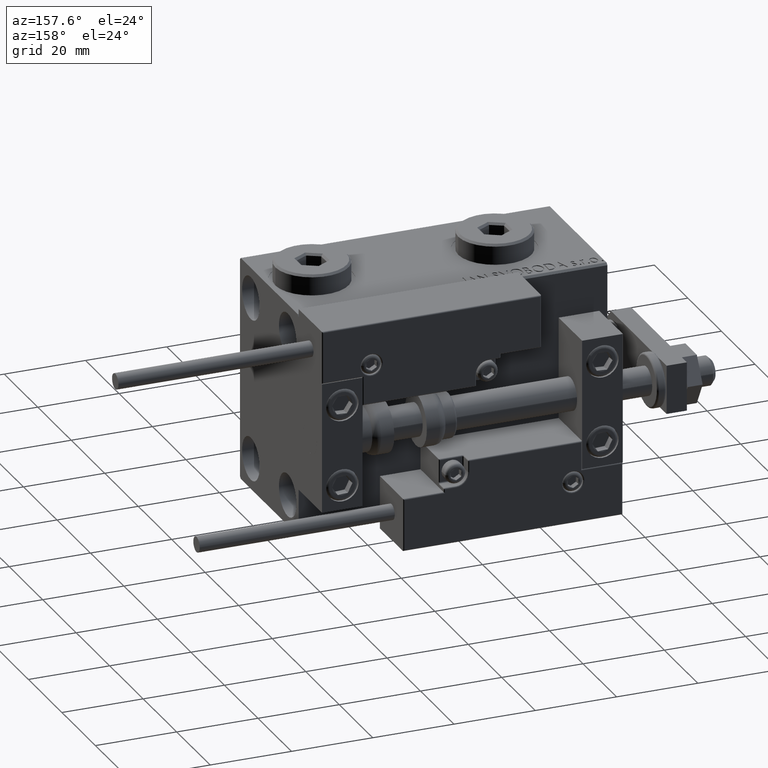
[diagram: clean part render]
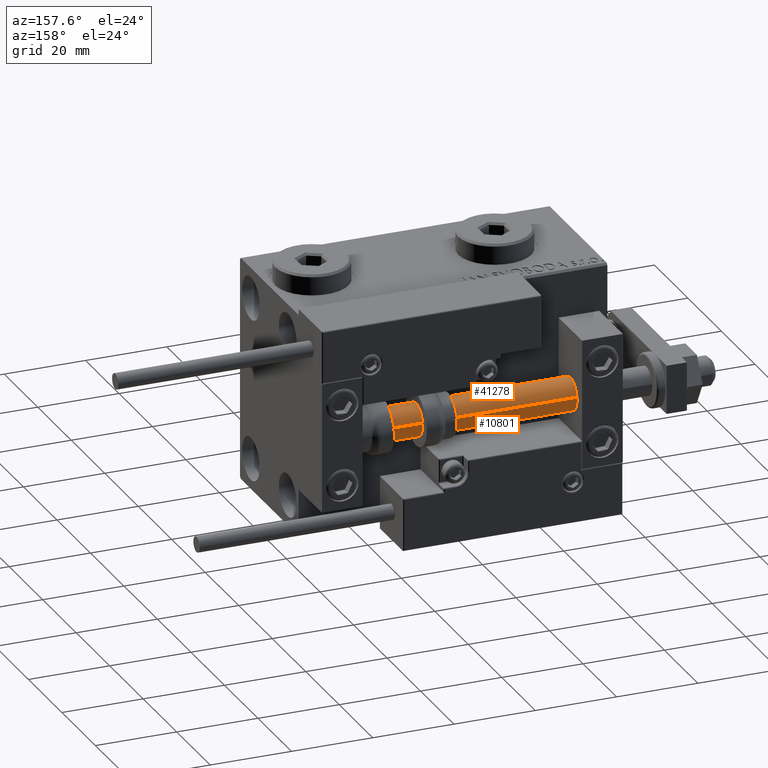
[diagram: same view with one multi-face feature highlighted, each face labeled with its STEP entity id]
A machine part, auxiliary view. The highlighted faces form ONE feature: a constant-radius fillet chain: 2 tangent blend faces with common blend radius 4 mm. The faces share edges in the B-rep.
Their STEP definitions:
[1] entity #10801 (Cylinder):
#3472 = VERTEX_POINT ( 'NONE', #39505 ) ;
#4714 = ORIENTED_EDGE ( 'NONE', *, *, #5388, .T. ) ;
#5067 = VECTOR ( 'NONE', #22461, 1000.000000000000000 ) ;
#5388 = EDGE_CURVE ( 'NONE', #16193, #13296, #23088, .T. ) ;
#7029 = DIRECTION ( 'NONE',  ( 1.000000000000000000, 0.000000000000000000, 0.000000000000000000 ) ) ;
#7575 = CYLINDRICAL_SURFACE ( 'NONE', #19918, 4.000000000000000000 ) ;
#8428 = EDGE_CURVE ( 'NONE', #14764, #3472, #35672, .T. ) ;
#10127 = CARTESIAN_POINT ( 'NONE',  ( 4.000000000000000000, 4.898587196589412829E-16, 2.000000000000029310 ) ) ;
#10801 = ADVANCED_FACE ( 'NONE', ( #35753 ), #7575, .T. ) ;
#11267 = DIRECTION ( 'NONE',  ( -0.000000000000000000, -0.000000000000000000, -1.000000000000000000 ) ) ;
#12687 = ORIENTED_EDGE ( 'NONE', *, *, #29607, .F. ) ;
#13296 = VERTEX_POINT ( 'NONE', #10127 ) ;
#14764 = VERTEX_POINT ( 'NONE', #29100 ) ;
#15994 = ORIENTED_EDGE ( 'NONE', *, *, #8428, .F. ) ;
#16193 = VERTEX_POINT ( 'NONE', #25836 ) ;
#18174 = AXIS2_PLACEMENT_3D ( 'NONE', #38868, #27880, #7029 ) ;
#18603 = CARTESIAN_POINT ( 'NONE',  ( 4.000000000000000000, 4.898587196589412829E-16, 76.00000000000000000 ) ) ;
#19208 = CARTESIAN_POINT ( 'NONE',  ( 0.000000000000000000, 0.000000000000000000, 2.000000000000029310 ) ) ;
#19918 = AXIS2_PLACEMENT_3D ( 'NONE', #27918, #43822, #20097 ) ;
#20097 = DIRECTION ( 'NONE',  ( -1.000000000000000000, 0.000000000000000000, 0.000000000000000000 ) ) ;
#22461 = DIRECTION ( 'NONE',  ( -0.000000000000000000, -0.000000000000000000, -1.000000000000000000 ) ) ;
#22621 = DIRECTION ( 'NONE',  ( 1.000000000000000000, 0.000000000000000000, 0.000000000000000000 ) ) ;
#23088 = CIRCLE ( 'NONE', #28907, 4.000000000000000000 ) ;
#25836 = CARTESIAN_POINT ( 'NONE',  ( -4.000000000000000000, 0.000000000000000000, 2.000000000000029310 ) ) ;
#27696 = EDGE_CURVE ( 'NONE', #14764, #16193, #50102, .T. ) ;
#27880 = DIRECTION ( 'NONE',  ( 0.000000000000000000, 0.000000000000000000, 1.000000000000000000 ) ) ;
#27918 = CARTESIAN_POINT ( 'NONE',  ( 0.000000000000000000, 0.000000000000000000, 76.00000000000000000 ) ) ;
#28907 = AXIS2_PLACEMENT_3D ( 'NONE', #19208, #34103, #22621 ) ;
#29100 = CARTESIAN_POINT ( 'NONE',  ( -4.000000000000000000, 0.000000000000000000, 76.00000000000000000 ) ) ;
#29513 = CARTESIAN_POINT ( 'NONE',  ( -4.000000000000000000, 0.000000000000000000, 76.00000000000000000 ) ) ;
#29607 = EDGE_CURVE ( 'NONE', #3472, #13296, #34273, .T. ) ;
#34103 = DIRECTION ( 'NONE',  ( -0.000000000000000000, -0.000000000000000000, 1.000000000000000000 ) ) ;
#34273 = LINE ( 'NONE', #18603, #34297 ) ;
#34297 = VECTOR ( 'NONE', #11267, 1000.000000000000000 ) ;
#35672 = CIRCLE ( 'NONE', #18174, 4.000000000000000000 ) ;
#35753 = FACE_OUTER_BOUND ( 'NONE', #35891, .T. ) ;
#35891 = EDGE_LOOP ( 'NONE', ( #12687, #15994, #46524, #4714 ) ) ;
#38868 = CARTESIAN_POINT ( 'NONE',  ( 0.000000000000000000, 0.000000000000000000, 76.00000000000000000 ) ) ;
#39505 = CARTESIAN_POINT ( 'NONE',  ( 4.000000000000000000, 4.898587196589412829E-16, 76.00000000000000000 ) ) ;
#43822 = DIRECTION ( 'NONE',  ( -0.000000000000000000, -0.000000000000000000, -1.000000000000000000 ) ) ;
#46524 = ORIENTED_EDGE ( 'NONE', *, *, #27696, .T. ) ;
#50102 = LINE ( 'NONE', #29513, #5067 ) ;
[2] entity #41278 (Cylinder):
#223 = CARTESIAN_POINT ( 'NONE',  ( 0.000000000000000000, 0.000000000000000000, 76.00000000000000000 ) ) ;
#742 = DIRECTION ( 'NONE',  ( 1.000000000000000000, 0.000000000000000000, 0.000000000000000000 ) ) ;
#3472 = VERTEX_POINT ( 'NONE', #39505 ) ;
#5067 = VECTOR ( 'NONE', #22461, 1000.000000000000000 ) ;
#5253 = ORIENTED_EDGE ( 'NONE', *, *, #21932, .F. ) ;
#5425 = AXIS2_PLACEMENT_3D ( 'NONE', #37491, #26239, #10582 ) ;
#10127 = CARTESIAN_POINT ( 'NONE',  ( 4.000000000000000000, 4.898587196589412829E-16, 2.000000000000029310 ) ) ;
#10582 = DIRECTION ( 'NONE',  ( 1.000000000000000000, 0.000000000000000000, 0.000000000000000000 ) ) ;
#10818 = CIRCLE ( 'NONE', #43338, 4.000000000000000000 ) ;
#11267 = DIRECTION ( 'NONE',  ( -0.000000000000000000, -0.000000000000000000, -1.000000000000000000 ) ) ;
#11498 = ORIENTED_EDGE ( 'NONE', *, *, #27696, .F. ) ;
#13296 = VERTEX_POINT ( 'NONE', #10127 ) ;
#14764 = VERTEX_POINT ( 'NONE', #29100 ) ;
#16193 = VERTEX_POINT ( 'NONE', #25836 ) ;
#17986 = ORIENTED_EDGE ( 'NONE', *, *, #29607, .T. ) ;
#18603 = CARTESIAN_POINT ( 'NONE',  ( 4.000000000000000000, 4.898587196589412829E-16, 76.00000000000000000 ) ) ;
#19022 = CYLINDRICAL_SURFACE ( 'NONE', #30465, 4.000000000000000000 ) ;
#21347 = ORIENTED_EDGE ( 'NONE', *, *, #35883, .T. ) ;
#21932 = EDGE_CURVE ( 'NONE', #3472, #14764, #10818, .T. ) ;
#22461 = DIRECTION ( 'NONE',  ( -0.000000000000000000, -0.000000000000000000, -1.000000000000000000 ) ) ;
#25836 = CARTESIAN_POINT ( 'NONE',  ( -4.000000000000000000, 0.000000000000000000, 2.000000000000029310 ) ) ;
#26239 = DIRECTION ( 'NONE',  ( -0.000000000000000000, -0.000000000000000000, 1.000000000000000000 ) ) ;
#27696 = EDGE_CURVE ( 'NONE', #14764, #16193, #50102, .T. ) ;
#29100 = CARTESIAN_POINT ( 'NONE',  ( -4.000000000000000000, 0.000000000000000000, 76.00000000000000000 ) ) ;
#29513 = CARTESIAN_POINT ( 'NONE',  ( -4.000000000000000000, 0.000000000000000000, 76.00000000000000000 ) ) ;
#29556 = CIRCLE ( 'NONE', #5425, 4.000000000000000000 ) ;
#29607 = EDGE_CURVE ( 'NONE', #3472, #13296, #34273, .T. ) ;
#30465 = AXIS2_PLACEMENT_3D ( 'NONE', #34173, #49552, #38341 ) ;
#32046 = DIRECTION ( 'NONE',  ( 0.000000000000000000, 0.000000000000000000, 1.000000000000000000 ) ) ;
#34173 = CARTESIAN_POINT ( 'NONE',  ( 0.000000000000000000, 0.000000000000000000, 76.00000000000000000 ) ) ;
#34273 = LINE ( 'NONE', #18603, #34297 ) ;
#34297 = VECTOR ( 'NONE', #11267, 1000.000000000000000 ) ;
#35883 = EDGE_CURVE ( 'NONE', #13296, #16193, #29556, .T. ) ;
#37491 = CARTESIAN_POINT ( 'NONE',  ( 0.000000000000000000, 0.000000000000000000, 2.000000000000029310 ) ) ;
#38341 = DIRECTION ( 'NONE',  ( -1.000000000000000000, 0.000000000000000000, 0.000000000000000000 ) ) ;
#38855 = FACE_OUTER_BOUND ( 'NONE', #47565, .T. ) ;
#39505 = CARTESIAN_POINT ( 'NONE',  ( 4.000000000000000000, 4.898587196589412829E-16, 76.00000000000000000 ) ) ;
#41278 = ADVANCED_FACE ( 'NONE', ( #38855 ), #19022, .T. ) ;
#43338 = AXIS2_PLACEMENT_3D ( 'NONE', #223, #32046, #742 ) ;
#47565 = EDGE_LOOP ( 'NONE', ( #5253, #17986, #21347, #11498 ) ) ;
#49552 = DIRECTION ( 'NONE',  ( -0.000000000000000000, -0.000000000000000000, -1.000000000000000000 ) ) ;
#50102 = LINE ( 'NONE', #29513, #5067 ) ;